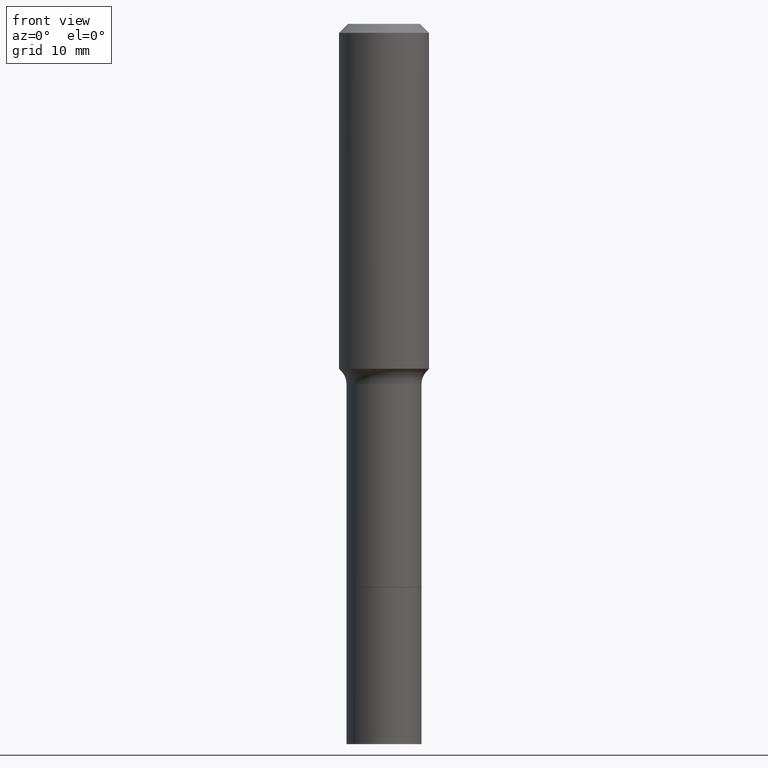
[diagram: clean part render]
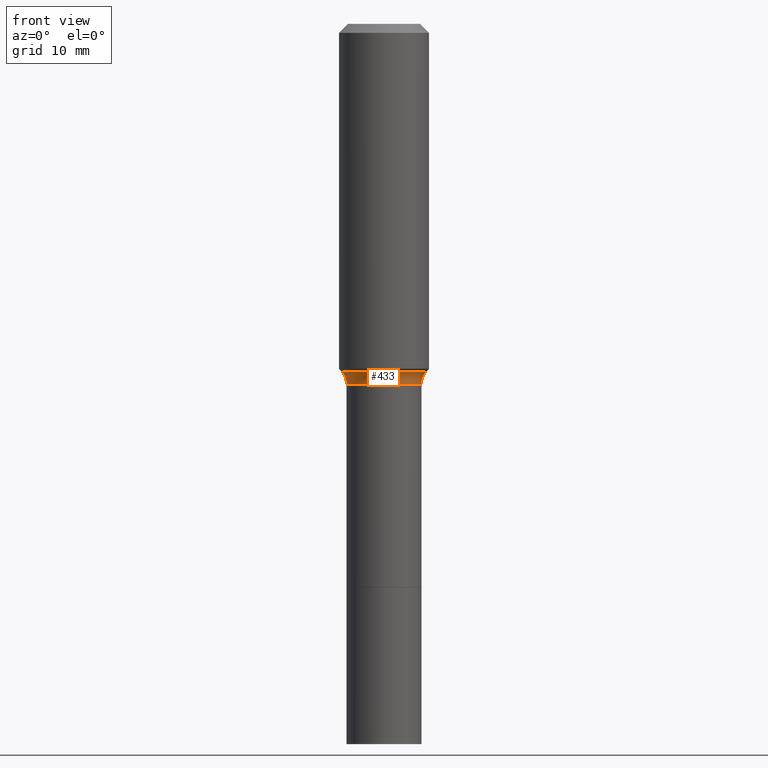
[diagram: same view with one face highlighted and labeled with its STEP entity id]
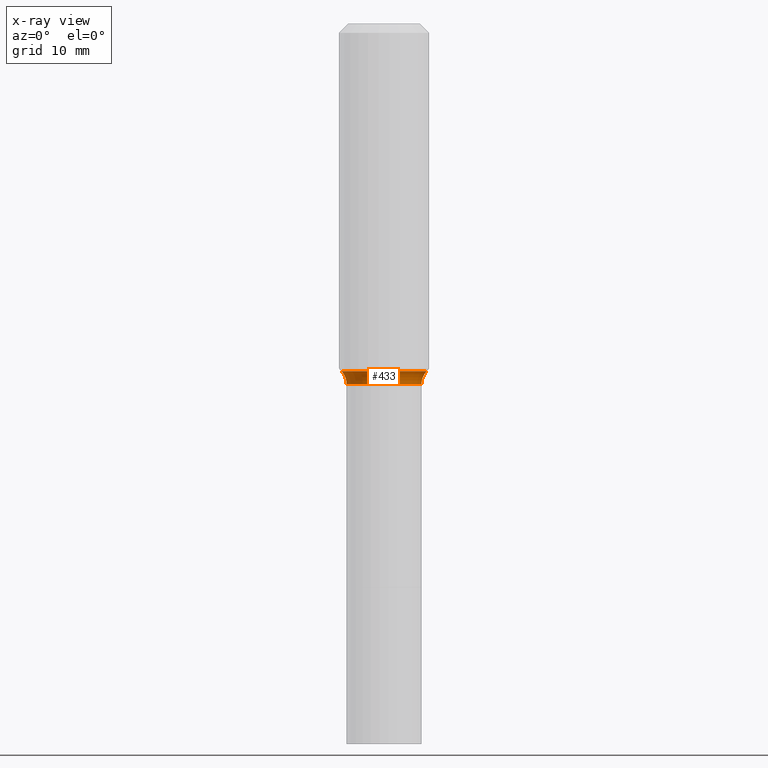
[diagram: x-ray of the same camera — body ghosted, the highlighted face saturated]
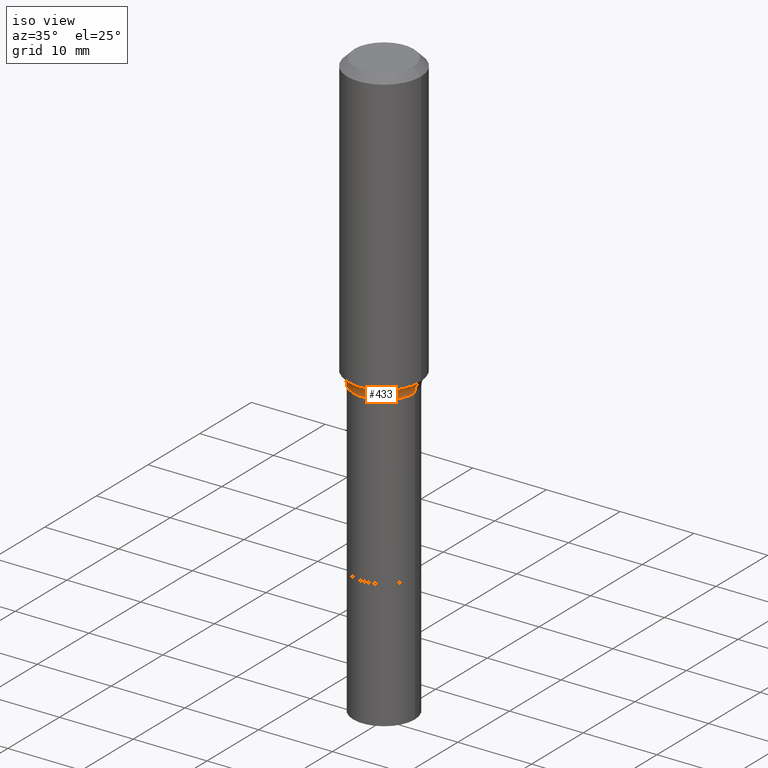
[diagram: same view with one face highlighted and labeled with its STEP entity id]
A machine part, front view. The second image highlights one B-rep face of the part: STEP entity #433.
The next image is the same camera in x-ray: the body ghosted, the highlighted face saturated — about 0% of this face is hidden behind the body in this view.
A second angle (iso view) of the same face is appended — the face is thin or edge-on in the first view.
In plain terms, the highlighted toroidal blend (fillet) surface has major radius 6.1989 mm and minor (blend) radius 2.032 mm.
Its self-contained STEP definition (entity closure, byte-faithful):
#10 = DIRECTION ( 'NONE',  ( 1.000000000000000000, -6.982962677686267499E-15, 0.000000000000000000 ) ) ;
#13 = AXIS2_PLACEMENT_3D ( 'NONE', #231, #271, #432 ) ;
#24 = CIRCLE ( 'NONE', #373, 0.1855417038704667287 ) ;
#26 = ORIENTED_EDGE ( 'NONE', *, *, #167, .T. ) ;
#42 = ORIENTED_EDGE ( 'NONE', *, *, #243, .F. ) ;
#57 = CARTESIAN_POINT ( 'NONE',  ( -0.2440499999999999337, -3.763606969519893915E-15, -1.574600000000000222 ) ) ;
#68 = CARTESIAN_POINT ( 'NONE',  ( 0.1640499999999999181, -6.643241543416849216E-15, -1.574600000000000222 ) ) ;
#89 = CARTESIAN_POINT ( 'NONE',  ( 3.850635182219116347E-29, -5.497686516142417553E-15, -1.574600000000000222 ) ) ;
#101 = DIRECTION ( 'NONE',  ( -1.000000000000000000, 7.105427357601005014E-15, 0.000000000000000000 ) ) ;
#113 = ORIENTED_EDGE ( 'NONE', *, *, #154, .F. ) ;
#115 = CIRCLE ( 'NONE', #122, 0.1640499999999999181 ) ;
#122 = AXIS2_PLACEMENT_3D ( 'NONE', #89, #362, #10 ) ;
#147 = DIRECTION ( 'NONE',  ( 1.000000000000000000, -6.982962677686265133E-15, 0.000000000000000000 ) ) ;
#148 = VERTEX_POINT ( 'NONE', #327 ) ;
#154 = EDGE_CURVE ( 'NONE', #148, #218, #328, .T. ) ;
#163 = EDGE_LOOP ( 'NONE', ( #42, #26, #391, #113 ) ) ;
#167 = EDGE_CURVE ( 'NONE', #270, #184, #178, .T. ) ;
#178 = CIRCLE ( 'NONE', #468, 0.07999999999999993228 ) ;
#184 = VERTEX_POINT ( 'NONE', #334 ) ;
#191 = FACE_OUTER_BOUND ( 'NONE', #163, .T. ) ;
#218 = VERTEX_POINT ( 'NONE', #68 ) ;
#231 = CARTESIAN_POINT ( 'NONE',  ( 3.850635182219116347E-29, -5.497686516142417553E-15, -1.574600000000000222 ) ) ;
#241 = TOROIDAL_SURFACE ( 'NONE', #13, 0.2440499999999999337, 0.07999999999999993228 ) ;
#243 = EDGE_CURVE ( 'NONE', #270, #148, #24, .T. ) ;
#245 = DIRECTION ( 'NONE',  ( -6.982962677686266711E-15, -1.000000000000000000, 3.491481338843145583E-15 ) ) ;
#270 = VERTEX_POINT ( 'NONE', #370 ) ;
#271 = DIRECTION ( 'NONE',  ( -2.445468806185136597E-29, 3.491481338843145583E-15, 1.000000000000000000 ) ) ;
#297 = DIRECTION ( 'NONE',  ( 1.000000000000000000, -6.982962677686265133E-15, 0.000000000000000000 ) ) ;
#305 = DIRECTION ( 'NONE',  ( 7.105427357601001859E-15, 1.000000000000000000, -3.491481338843145583E-15 ) ) ;
#327 = CARTESIAN_POINT ( 'NONE',  ( 0.1855417038704665345, -6.602822545641815467E-15, -1.520040131195000255 ) ) ;
#328 = CIRCLE ( 'NONE', #458, 0.07999999999999993228 ) ;
#334 = CARTESIAN_POINT ( 'NONE',  ( -0.1640499999999999181, -5.884877483578461552E-15, -1.574600000000000222 ) ) ;
#361 = CARTESIAN_POINT ( 'NONE',  ( 0.2440499999999999337, -7.201878557631750868E-15, -1.574600000000000222 ) ) ;
#362 = DIRECTION ( 'NONE',  ( -2.445468806185136597E-29, 3.491481338843145583E-15, 1.000000000000000000 ) ) ;
#370 = CARTESIAN_POINT ( 'NONE',  ( -0.1855417038704665345, -3.988838653702914463E-15, -1.520040131195000255 ) ) ;
#373 = AXIS2_PLACEMENT_3D ( 'NONE', #412, #460, #297 ) ;
#391 = ORIENTED_EDGE ( 'NONE', *, *, #480, .T. ) ;
#412 = CARTESIAN_POINT ( 'NONE',  ( 3.717210724986936016E-29, -5.307191752360030282E-15, -1.520040131195000255 ) ) ;
#432 = DIRECTION ( 'NONE',  ( 1.000000000000000000, -6.982962677686268288E-15, 4.883557194083113462E-29 ) ) ;
#433 = ADVANCED_FACE ( 'NONE', ( #191 ), #241, .F. ) ;
#458 = AXIS2_PLACEMENT_3D ( 'NONE', #361, #245, #147 ) ;
#460 = DIRECTION ( 'NONE',  ( -2.445468806185136597E-29, 3.491481338843145583E-15, 1.000000000000000000 ) ) ;
#468 = AXIS2_PLACEMENT_3D ( 'NONE', #57, #305, #101 ) ;
#480 = EDGE_CURVE ( 'NONE', #184, #218, #115, .T. ) ;